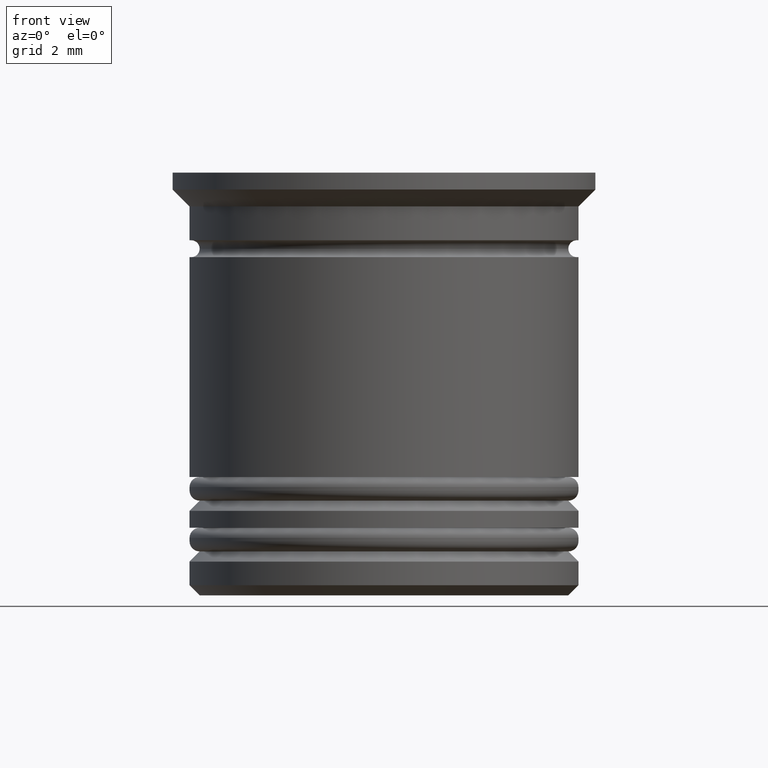
[diagram: clean part render]
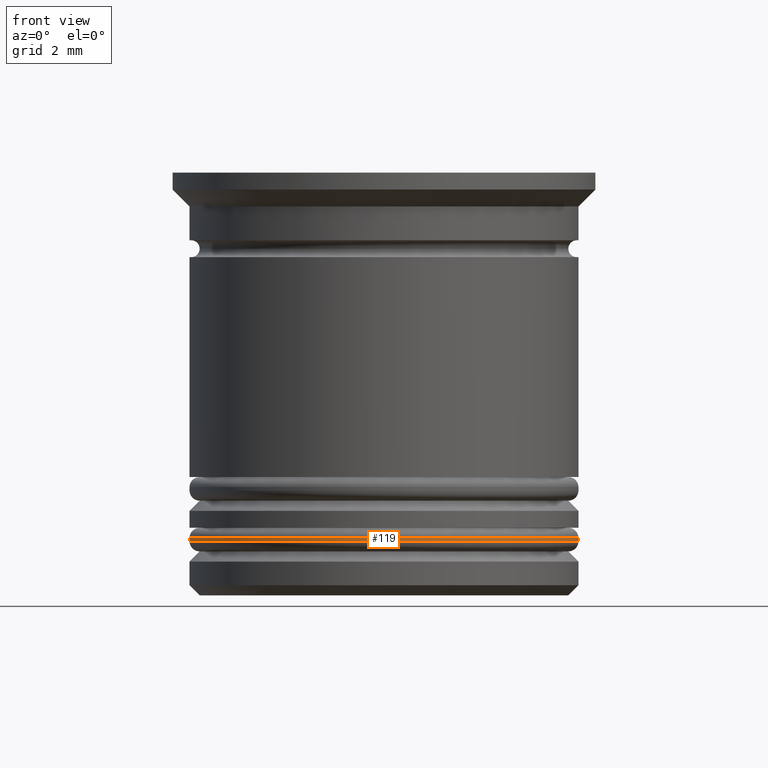
[diagram: same view with one face highlighted and labeled with its STEP entity id]
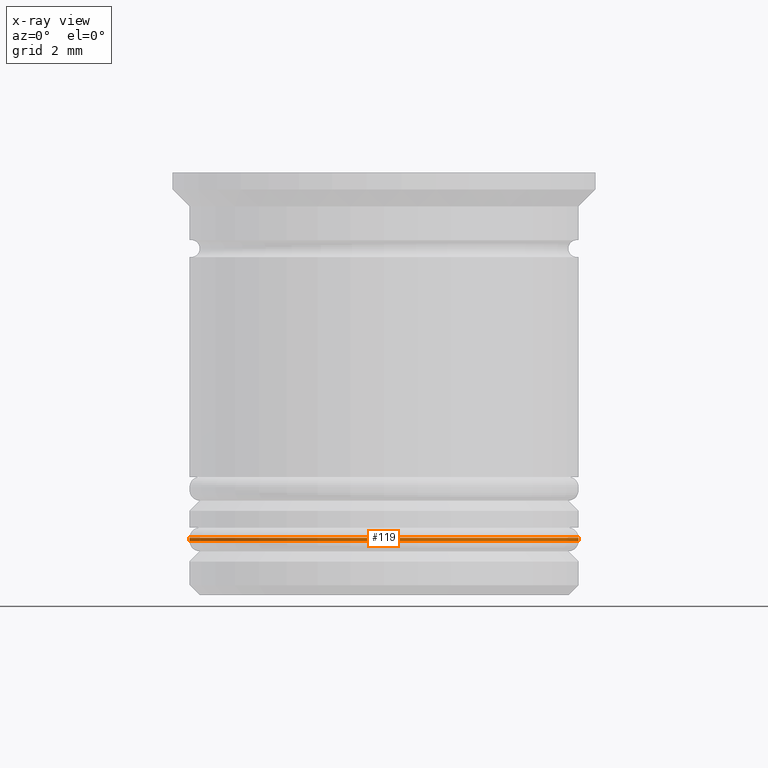
[diagram: x-ray of the same camera — body ghosted, the highlighted face saturated]
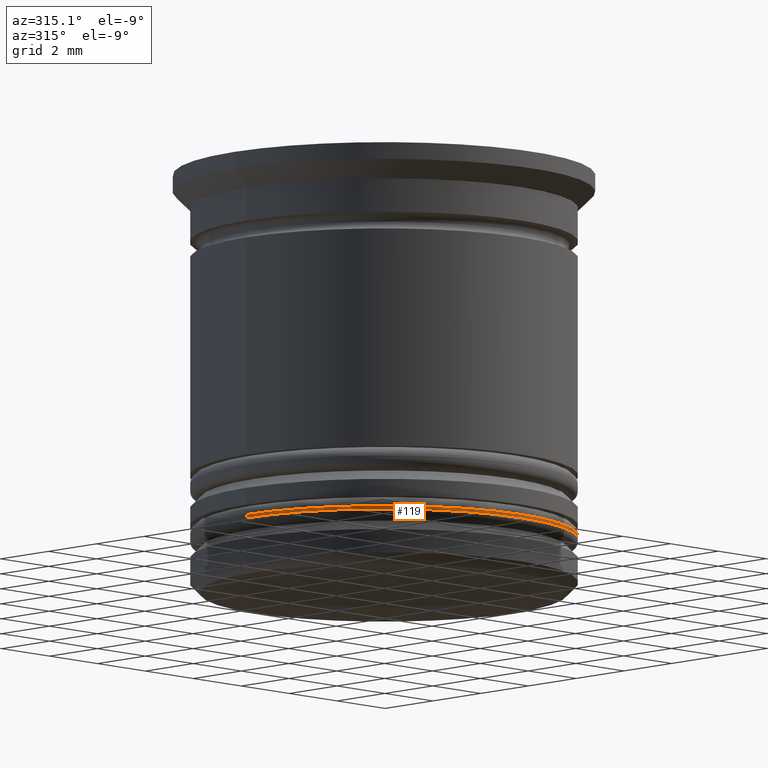
[diagram: same view with one face highlighted and labeled with its STEP entity id]
A machine part, front view. The second image highlights one B-rep face of the part: STEP entity #119.
The next image is the same camera in x-ray: the body ghosted, the highlighted face saturated — about 0% of this face is hidden behind the body in this view.
A second angle (auxiliary view) of the same face is appended — the face is thin or edge-on in the first view.
In plain terms, the highlighted cylindrical surface (partial cylindrical patch) has radius 5.75 mm, axis along (-0, -0, 1).
Its self-contained STEP definition (entity closure, byte-faithful):
#79 = ORIENTED_EDGE ( 'NONE', *, *, #623, .T. ) ;
#119 = ADVANCED_FACE ( 'NONE', ( #294 ), #1658, .T. ) ;
#143 = CARTESIAN_POINT ( 'NONE',  ( 0.000000000000000000, 0.000000000000000000, -27.46345596729060290 ) ) ;
#204 = CARTESIAN_POINT ( 'NONE',  ( -5.750000000000001776, 7.041719095097282852E-16, -10.90000000000000391 ) ) ;
#212 = DIRECTION ( 'NONE',  ( -0.000000000000000000, -0.000000000000000000, 1.000000000000000000 ) ) ;
#282 = EDGE_CURVE ( 'NONE', #1550, #1642, #1782, .T. ) ;
#294 = FACE_OUTER_BOUND ( 'NONE', #1876, .T. ) ;
#360 = CARTESIAN_POINT ( 'NONE',  ( 5.750000000000001776, 0.000000000000000000, -10.80000000000000071 ) ) ;
#373 = CARTESIAN_POINT ( 'NONE',  ( -5.750000000000001776, 7.041719095097282852E-16, -27.46345596729060290 ) ) ;
#384 = LINE ( 'NONE', #790, #1335 ) ;
#395 = CARTESIAN_POINT ( 'NONE',  ( 0.000000000000000000, 0.000000000000000000, -10.80000000000000071 ) ) ;
#427 = VECTOR ( 'NONE', #807, 1000.000000000000000 ) ;
#528 = DIRECTION ( 'NONE',  ( 1.000000000000000000, 0.000000000000000000, 0.000000000000000000 ) ) ;
#623 = EDGE_CURVE ( 'NONE', #1541, #1476, #1468, .T. ) ;
#686 = EDGE_CURVE ( 'NONE', #1550, #1476, #1733, .T. ) ;
#790 = CARTESIAN_POINT ( 'NONE',  ( 5.750000000000001776, 0.000000000000000000, -27.46345596729060290 ) ) ;
#807 = DIRECTION ( 'NONE',  ( -0.000000000000000000, -0.000000000000000000, 1.000000000000000000 ) ) ;
#820 = AXIS2_PLACEMENT_3D ( 'NONE', #1009, #1599, #528 ) ;
#899 = DIRECTION ( 'NONE',  ( 1.000000000000000000, 0.000000000000000000, 0.000000000000000000 ) ) ;
#967 = ORIENTED_EDGE ( 'NONE', *, *, #1466, .T. ) ;
#1009 = CARTESIAN_POINT ( 'NONE',  ( 0.000000000000000000, 0.000000000000000000, -10.90000000000000391 ) ) ;
#1010 = AXIS2_PLACEMENT_3D ( 'NONE', #143, #1811, #899 ) ;
#1165 = CARTESIAN_POINT ( 'NONE',  ( -5.750000000000001776, 7.041719095097282852E-16, -10.80000000000000071 ) ) ;
#1335 = VECTOR ( 'NONE', #212, 1000.000000000000000 ) ;
#1455 = ORIENTED_EDGE ( 'NONE', *, *, #686, .F. ) ;
#1466 = EDGE_CURVE ( 'NONE', #1642, #1541, #384, .T. ) ;
#1468 = CIRCLE ( 'NONE', #1721, 5.750000000000001776 ) ;
#1476 = VERTEX_POINT ( 'NONE', #1165 ) ;
#1541 = VERTEX_POINT ( 'NONE', #360 ) ;
#1550 = VERTEX_POINT ( 'NONE', #204 ) ;
#1599 = DIRECTION ( 'NONE',  ( 0.000000000000000000, 0.000000000000000000, 1.000000000000000000 ) ) ;
#1620 = CARTESIAN_POINT ( 'NONE',  ( 5.750000000000001776, 0.000000000000000000, -10.90000000000000391 ) ) ;
#1642 = VERTEX_POINT ( 'NONE', #1620 ) ;
#1658 = CYLINDRICAL_SURFACE ( 'NONE', #1010, 5.750000000000001776 ) ;
#1721 = AXIS2_PLACEMENT_3D ( 'NONE', #395, #1861, #1893 ) ;
#1733 = LINE ( 'NONE', #373, #427 ) ;
#1743 = ORIENTED_EDGE ( 'NONE', *, *, #282, .T. ) ;
#1782 = CIRCLE ( 'NONE', #820, 5.750000000000001776 ) ;
#1811 = DIRECTION ( 'NONE',  ( -0.000000000000000000, -0.000000000000000000, 1.000000000000000000 ) ) ;
#1861 = DIRECTION ( 'NONE',  ( 0.000000000000000000, 0.000000000000000000, -1.000000000000000000 ) ) ;
#1876 = EDGE_LOOP ( 'NONE', ( #1455, #1743, #967, #79 ) ) ;
#1893 = DIRECTION ( 'NONE',  ( -1.000000000000000000, 0.000000000000000000, 0.000000000000000000 ) ) ;